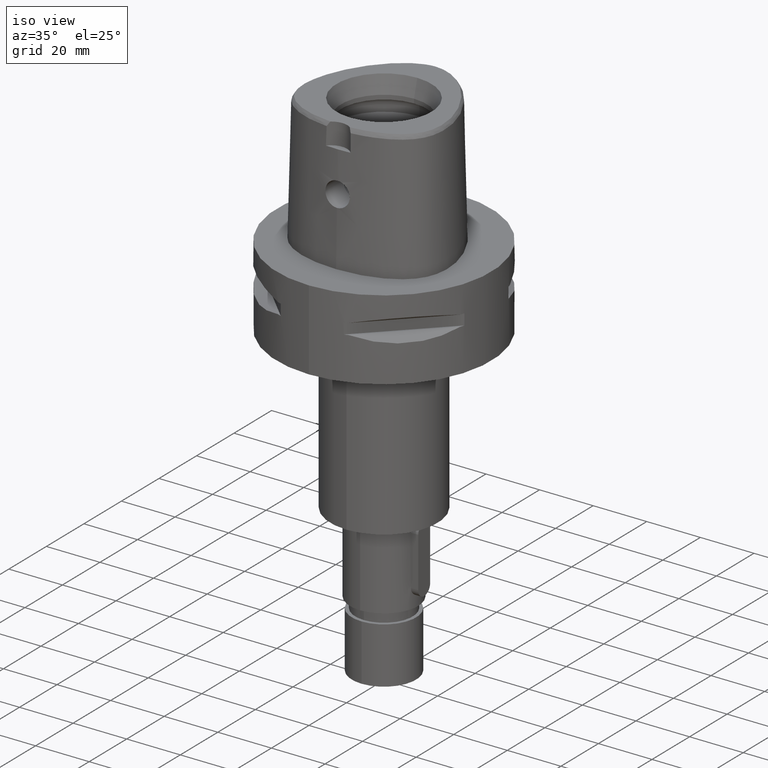
[diagram: clean part render]
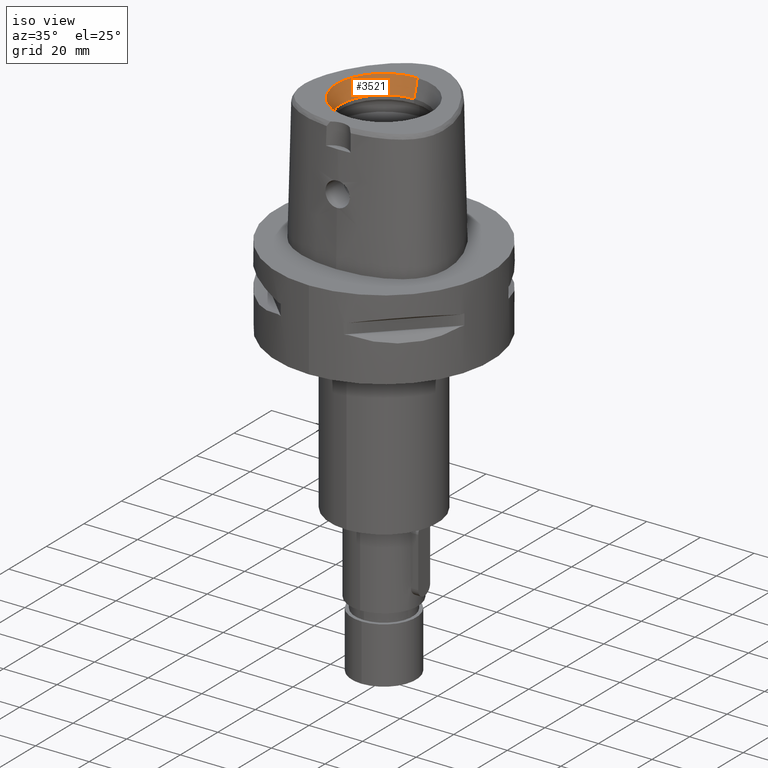
[diagram: same view with one face highlighted and labeled with its STEP entity id]
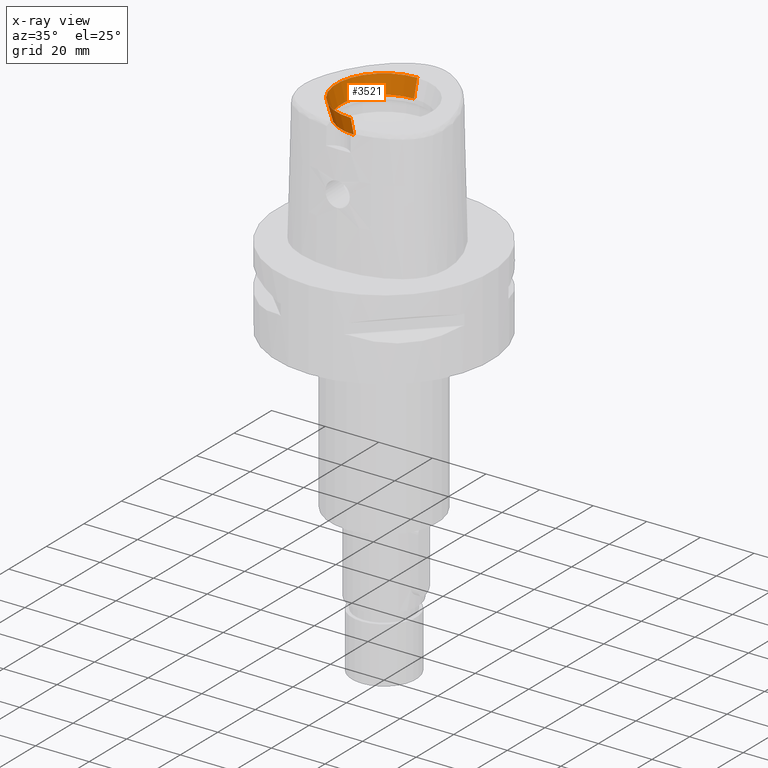
[diagram: x-ray of the same camera — body ghosted, the highlighted face saturated]
A machine part, iso view. The second image highlights one B-rep face of the part: STEP entity #3521.
The next image is the same camera in x-ray: the body ghosted, the highlighted face saturated — about 0% of this face is hidden behind the body in this view.
In plain terms, the highlighted conical surface has half-angle 15 deg.
Its self-contained STEP definition (entity closure, byte-faithful):
#112=CARTESIAN_POINT('',(0.E0,0.E0,4.8E1));
#113=DIRECTION('',(0.E0,0.E0,1.E0));
#114=DIRECTION('',(0.E0,1.E0,0.E0));
#115=AXIS2_PLACEMENT_3D('',#112,#113,#114);
#1465=DIRECTION('',(0.E0,2.588190451026E-1,9.659258262891E-1));
#1466=VECTOR('',#1465,6.625767554625E0);
#1467=CARTESIAN_POINT('',(0.E0,1.6E1,4.16E1));
#1468=LINE('',#1467,#1466);
#1472=CARTESIAN_POINT('',(0.E0,0.E0,4.16E1));
#1473=DIRECTION('',(0.E0,0.E0,1.E0));
#1474=DIRECTION('',(0.E0,1.E0,0.E0));
#1475=AXIS2_PLACEMENT_3D('',#1472,#1473,#1474);
#1480=DIRECTION('',(0.E0,-2.588190451026E-1,9.659258262891E-1));
#1481=VECTOR('',#1480,6.625767554625E0);
#1482=CARTESIAN_POINT('',(0.E0,-1.6E1,4.16E1));
#1483=LINE('',#1482,#1481);
#1582=CARTESIAN_POINT('',(0.E0,1.771487483156E1,4.8E1));
#1583=CARTESIAN_POINT('',(0.E0,-1.771487483156E1,4.8E1));
#1584=VERTEX_POINT('',#1582);
#1585=VERTEX_POINT('',#1583);
#1745=CARTESIAN_POINT('',(0.E0,-1.6E1,4.16E1));
#1746=VERTEX_POINT('',#1745);
#1747=CARTESIAN_POINT('',(0.E0,1.6E1,4.16E1));
#1748=VERTEX_POINT('',#1747);
#3510=CARTESIAN_POINT('',(0.E0,0.E0,4.48E1));
#3511=DIRECTION('',(0.E0,0.E0,1.E0));
#3512=DIRECTION('',(0.E0,1.E0,0.E0));
#3513=AXIS2_PLACEMENT_3D('',#3510,#3511,#3512);
#3514=CONICAL_SURFACE('',#3513,1.685743741578E1,1.5E1);
#3515=ORIENTED_EDGE('',*,*,#1770,.F.);
#3516=ORIENTED_EDGE('',*,*,#3505,.F.);
#3517=ORIENTED_EDGE('',*,*,#3475,.T.);
#3518=ORIENTED_EDGE('',*,*,#3502,.T.);
#3519=EDGE_LOOP('',(#3515,#3516,#3517,#3518));
#3520=FACE_OUTER_BOUND('',#3519,.F.);
#116=CIRCLE('',#115,1.771487483156E1);
#1476=CIRCLE('',#1475,1.6E1);
#1770=EDGE_CURVE('',#1584,#1585,#116,.T.);
#3475=EDGE_CURVE('',#1748,#1746,#1476,.T.);
#3502=EDGE_CURVE('',#1746,#1585,#1483,.T.);
#3505=EDGE_CURVE('',#1748,#1584,#1468,.T.);
#3521=ADVANCED_FACE('',(#3520),#3514,.F.);